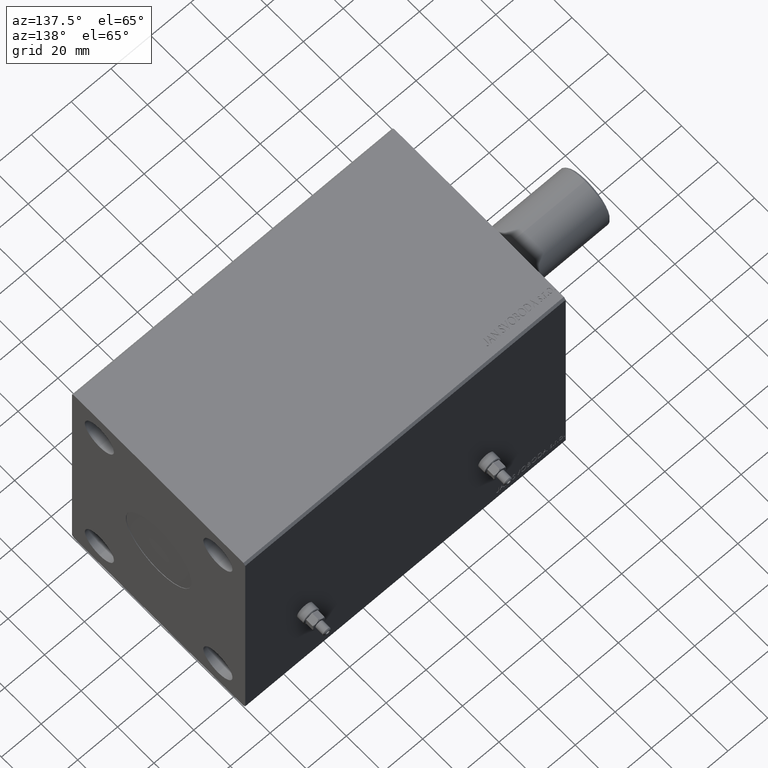
[diagram: clean part render]
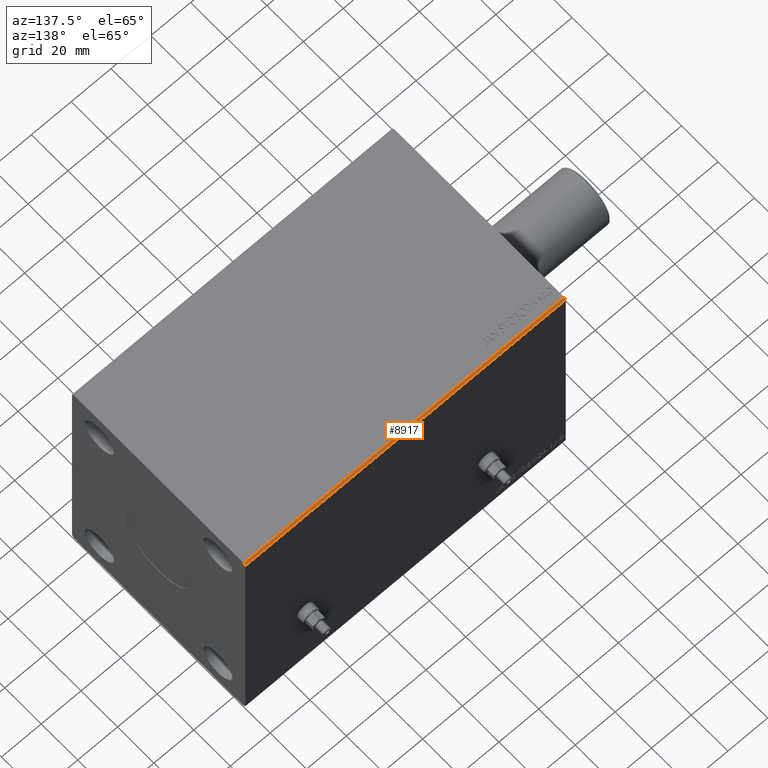
[diagram: same view with one face highlighted and labeled with its STEP entity id]
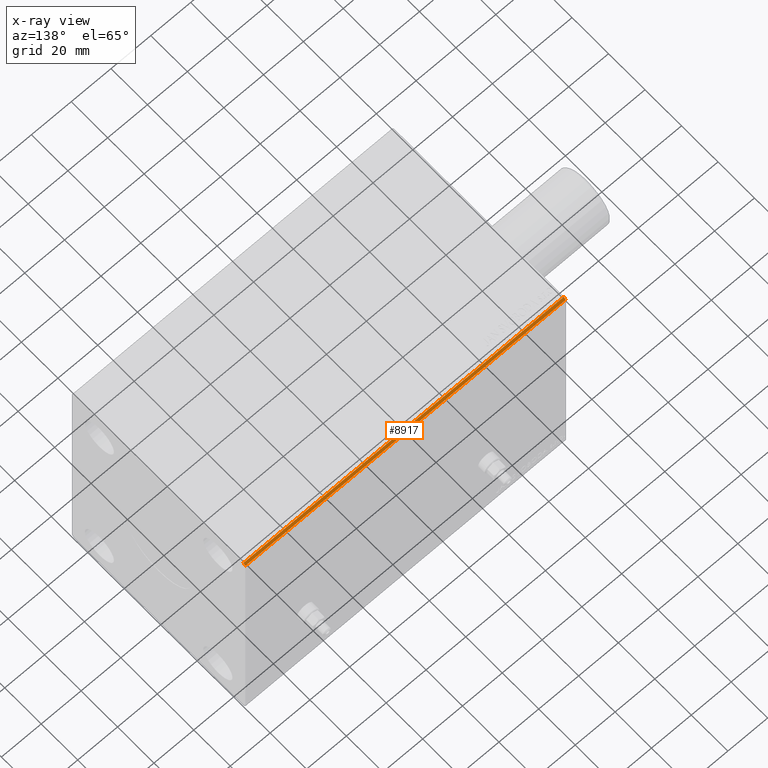
[diagram: x-ray of the same camera — body ghosted, the highlighted face saturated]
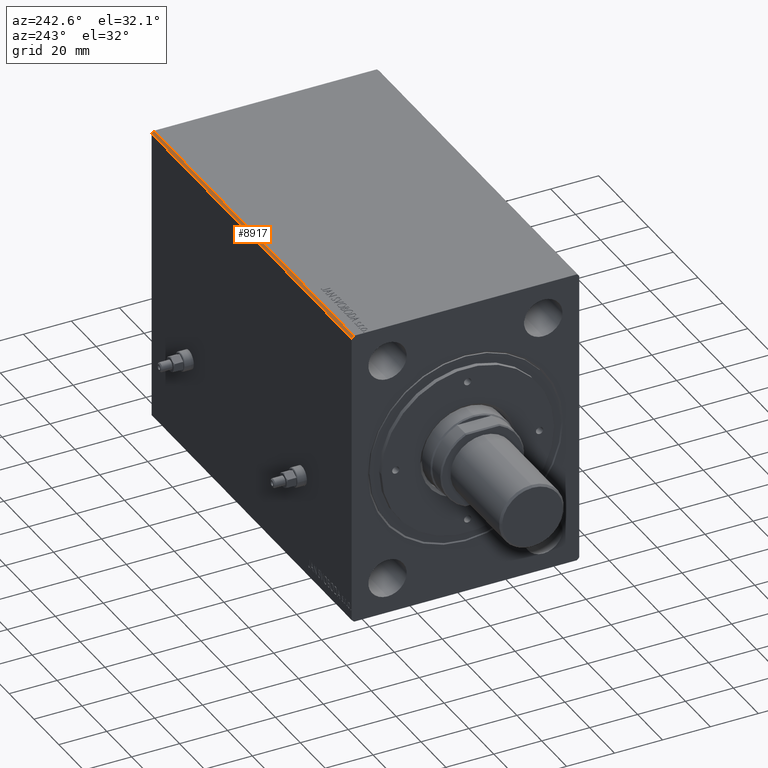
[diagram: same view with one face highlighted and labeled with its STEP entity id]
A machine part, auxiliary view. The second image highlights one B-rep face of the part: STEP entity #8917.
The next image is the same camera in x-ray: the body ghosted, the highlighted face saturated — about 0% of this face is hidden behind the body in this view.
A second angle (auxiliary view) of the same face is appended — the face is thin or edge-on in the first view.
In plain terms, the highlighted planar face has unit normal (0, -0.7071, -0.7071).
Its self-contained STEP definition (entity closure, byte-faithful):
#741 = VECTOR ( 'NONE', #1376, 1000.000000000000114 ) ;
#1225 = PLANE ( 'NONE',  #42136 ) ;
#1376 = DIRECTION ( 'NONE',  ( 0.000000000000000000, -0.7071067811865474617, 0.7071067811865474617 ) ) ;
#2073 = CARTESIAN_POINT ( 'NONE',  ( 0.000000000000000000, 47.50000000000000000, 61.49999999999998579 ) ) ;
#2488 = VERTEX_POINT ( 'NONE', #42973 ) ;
#4892 = FACE_OUTER_BOUND ( 'NONE', #32965, .T. ) ;
#5717 = ORIENTED_EDGE ( 'NONE', *, *, #32414, .F. ) ;
#6889 = ORIENTED_EDGE ( 'NONE', *, *, #38391, .F. ) ;
#7178 = VECTOR ( 'NONE', #21738, 1000.000000000000000 ) ;
#8553 = VERTEX_POINT ( 'NONE', #22601 ) ;
#8814 = DIRECTION ( 'NONE',  ( 0.000000000000000000, 0.7071067811865474617, -0.7071067811865474617 ) ) ;
#8917 = ADVANCED_FACE ( 'NONE', ( #4892 ), #1225, .F. ) ;
#15326 = CARTESIAN_POINT ( 'NONE',  ( 161.0000000000000000, 46.50000000000000000, 62.49999999999998579 ) ) ;
#15384 = VECTOR ( 'NONE', #30526, 1000.000000000000114 ) ;
#16074 = VECTOR ( 'NONE', #21622, 1000.000000000000000 ) ;
#16551 = CARTESIAN_POINT ( 'NONE',  ( 161.0000000000000000, 47.50000000000000000, 61.49999999999998579 ) ) ;
#20080 = VERTEX_POINT ( 'NONE', #32840 ) ;
#21622 = DIRECTION ( 'NONE',  ( -1.000000000000000000, -0.000000000000000000, -0.000000000000000000 ) ) ;
#21738 = DIRECTION ( 'NONE',  ( -1.000000000000000000, -0.000000000000000000, -0.000000000000000000 ) ) ;
#21906 = EDGE_CURVE ( 'NONE', #20080, #8553, #38828, .T. ) ;
#22601 = CARTESIAN_POINT ( 'NONE',  ( 0.000000000000000000, 47.50000000000000000, 61.49999999999998579 ) ) ;
#25899 = VERTEX_POINT ( 'NONE', #35950 ) ;
#26218 = CARTESIAN_POINT ( 'NONE',  ( 161.0000000000000000, 47.50000000000000000, 61.49999999999998579 ) ) ;
#30526 = DIRECTION ( 'NONE',  ( 0.000000000000000000, -0.7071067811865474617, 0.7071067811865474617 ) ) ;
#32279 = LINE ( 'NONE', #15326, #7178 ) ;
#32414 = EDGE_CURVE ( 'NONE', #2488, #25899, #32279, .T. ) ;
#32840 = CARTESIAN_POINT ( 'NONE',  ( 161.0000000000000000, 47.50000000000000000, 61.49999999999998579 ) ) ;
#32965 = EDGE_LOOP ( 'NONE', ( #33780, #5717, #6889, #39737 ) ) ;
#33780 = ORIENTED_EDGE ( 'NONE', *, *, #43252, .T. ) ;
#33990 = LINE ( 'NONE', #16551, #15384 ) ;
#35950 = CARTESIAN_POINT ( 'NONE',  ( 0.000000000000000000, 46.50000000000000000, 62.49999999999998579 ) ) ;
#38391 = EDGE_CURVE ( 'NONE', #20080, #2488, #33990, .T. ) ;
#38607 = CARTESIAN_POINT ( 'NONE',  ( 161.0000000000000000, 47.50000000000000000, 61.49999999999998579 ) ) ;
#38828 = LINE ( 'NONE', #38607, #16074 ) ;
#39737 = ORIENTED_EDGE ( 'NONE', *, *, #21906, .T. ) ;
#40205 = DIRECTION ( 'NONE',  ( 0.000000000000000000, -0.7071067811865475727, -0.7071067811865475727 ) ) ;
#42136 = AXIS2_PLACEMENT_3D ( 'NONE', #26218, #40205, #8814 ) ;
#42973 = CARTESIAN_POINT ( 'NONE',  ( 161.0000000000000000, 46.50000000000000000, 62.49999999999998579 ) ) ;
#43252 = EDGE_CURVE ( 'NONE', #8553, #25899, #44011, .T. ) ;
#44011 = LINE ( 'NONE', #2073, #741 ) ;